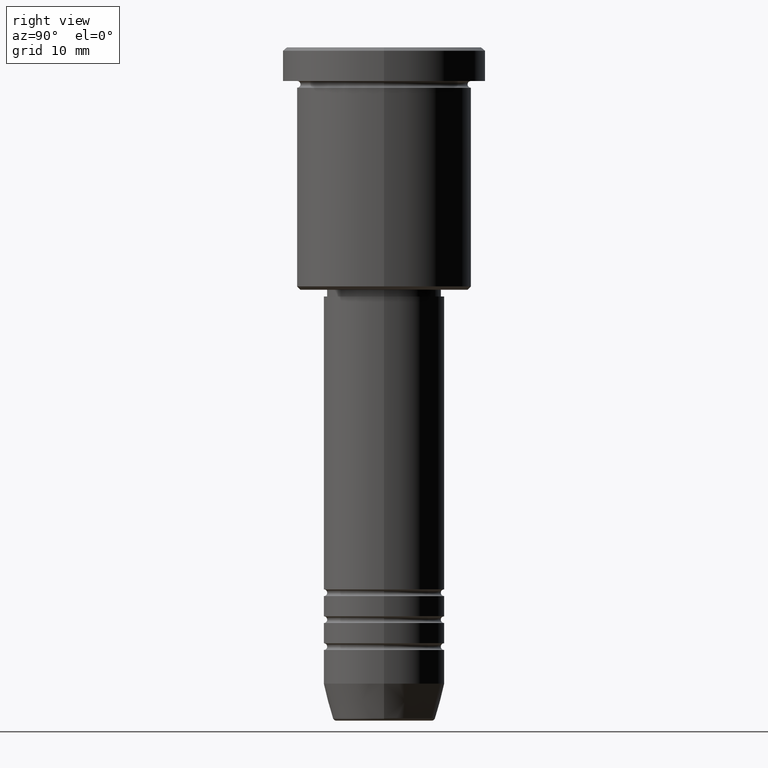
[diagram: clean part render]
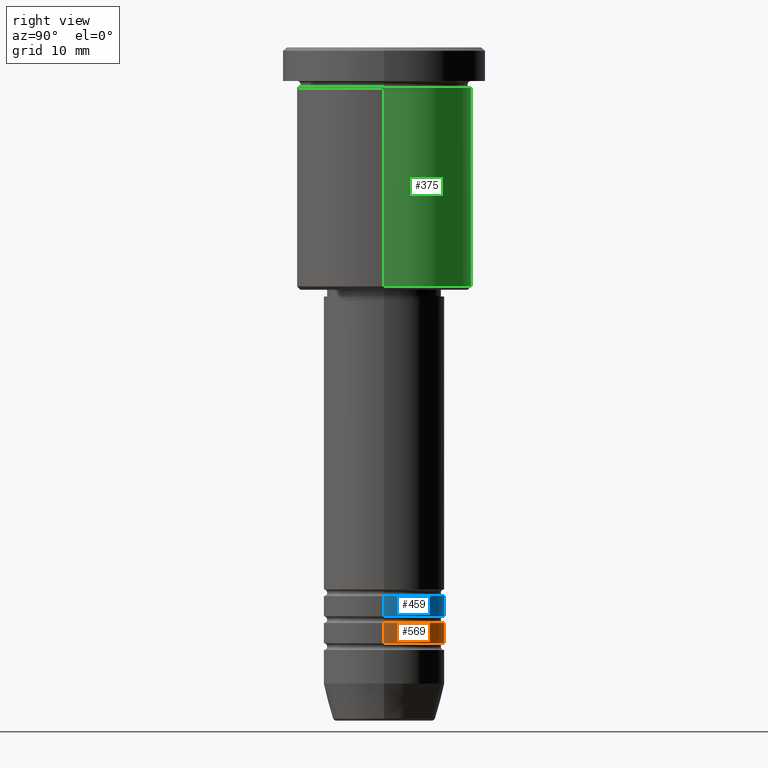
[diagram: same view with three faces highlighted in distinct colors, each labeled with its STEP entity id]
A machine part, right view with three faces highlighted in distinct colors.
Their STEP definitions:

[orange] entity #569 — the highlighted cylindrical surface (partial cylindrical patch) has radius 9 mm, axis along (-0, -0, 1).
#23 = DIRECTION ( 'NONE',  ( -0.000000000000000000, -0.000000000000000000, 1.000000000000000000 ) ) ;
#111 = LINE ( 'NONE', #144, #901 ) ;
#144 = CARTESIAN_POINT ( 'NONE',  ( 9.000000000000001776, 0.000000000000000000, 0.000000000000000000 ) ) ;
#168 = CARTESIAN_POINT ( 'NONE',  ( -9.000000000000000000, 1.102182119232617714E-15, -85.49999999999998579 ) ) ;
#213 = ORIENTED_EDGE ( 'NONE', *, *, #739, .T. ) ;
#224 = CARTESIAN_POINT ( 'NONE',  ( 0.000000000000000000, 0.000000000000000000, 0.000000000000000000 ) ) ;
#230 = CARTESIAN_POINT ( 'NONE',  ( 9.000000000000000000, 0.000000000000000000, -85.49999999999998579 ) ) ;
#286 = VERTEX_POINT ( 'NONE', #741 ) ;
#333 = DIRECTION ( 'NONE',  ( -0.000000000000000000, -0.000000000000000000, 1.000000000000000000 ) ) ;
#383 = CARTESIAN_POINT ( 'NONE',  ( 0.000000000000000000, 0.000000000000000000, -85.49999999999998579 ) ) ;
#465 = AXIS2_PLACEMENT_3D ( 'NONE', #1162, #333, #716 ) ;
#473 = DIRECTION ( 'NONE',  ( 1.000000000000000000, 0.000000000000000000, 0.000000000000000000 ) ) ;
#510 = CIRCLE ( 'NONE', #776, 9.000000000000000000 ) ;
#524 = EDGE_CURVE ( 'NONE', #1075, #761, #510, .T. ) ;
#569 = ADVANCED_FACE ( 'NONE', ( #693 ), #1048, .T. ) ;
#584 = EDGE_CURVE ( 'NONE', #286, #1075, #111, .T. ) ;
#671 = VERTEX_POINT ( 'NONE', #881 ) ;
#683 = ORIENTED_EDGE ( 'NONE', *, *, #1102, .T. ) ;
#693 = FACE_OUTER_BOUND ( 'NONE', #1015, .T. ) ;
#694 = LINE ( 'NONE', #954, #1173 ) ;
#716 = DIRECTION ( 'NONE',  ( 1.000000000000000000, 0.000000000000000000, 0.000000000000000000 ) ) ;
#739 = EDGE_CURVE ( 'NONE', #286, #671, #1022, .T. ) ;
#741 = CARTESIAN_POINT ( 'NONE',  ( 9.000000000000001776, 0.000000000000000000, -88.49999999999998579 ) ) ;
#761 = VERTEX_POINT ( 'NONE', #168 ) ;
#776 = AXIS2_PLACEMENT_3D ( 'NONE', #383, #1124, #473 ) ;
#881 = CARTESIAN_POINT ( 'NONE',  ( -9.000000000000001776, 1.102182119232617911E-15, -88.49999999999998579 ) ) ;
#883 = DIRECTION ( 'NONE',  ( -0.000000000000000000, -0.000000000000000000, 1.000000000000000000 ) ) ;
#901 = VECTOR ( 'NONE', #1145, 1000.000000000000000 ) ;
#921 = AXIS2_PLACEMENT_3D ( 'NONE', #224, #23, #1028 ) ;
#954 = CARTESIAN_POINT ( 'NONE',  ( -9.000000000000001776, 1.102182119232617911E-15, 0.000000000000000000 ) ) ;
#1015 = EDGE_LOOP ( 'NONE', ( #213, #683, #1139, #1114 ) ) ;
#1022 = CIRCLE ( 'NONE', #465, 9.000000000000001776 ) ;
#1028 = DIRECTION ( 'NONE',  ( 1.000000000000000000, 0.000000000000000000, 0.000000000000000000 ) ) ;
#1048 = CYLINDRICAL_SURFACE ( 'NONE', #921, 9.000000000000001776 ) ;
#1075 = VERTEX_POINT ( 'NONE', #230 ) ;
#1102 = EDGE_CURVE ( 'NONE', #671, #761, #694, .T. ) ;
#1114 = ORIENTED_EDGE ( 'NONE', *, *, #584, .F. ) ;
#1124 = DIRECTION ( 'NONE',  ( -0.000000000000000000, -0.000000000000000000, 1.000000000000000000 ) ) ;
#1139 = ORIENTED_EDGE ( 'NONE', *, *, #524, .F. ) ;
#1145 = DIRECTION ( 'NONE',  ( -0.000000000000000000, -0.000000000000000000, 1.000000000000000000 ) ) ;
#1162 = CARTESIAN_POINT ( 'NONE',  ( 0.000000000000000000, 0.000000000000000000, -88.49999999999998579 ) ) ;
#1173 = VECTOR ( 'NONE', #883, 1000.000000000000000 ) ;

[blue] entity #459 — the highlighted cylindrical surface (partial cylindrical patch) has radius 9 mm, axis along (-0, -0, 1).
#10 = VERTEX_POINT ( 'NONE', #657 ) ;
#32 = DIRECTION ( 'NONE',  ( 1.000000000000000000, 0.000000000000000000, 0.000000000000000000 ) ) ;
#40 = CARTESIAN_POINT ( 'NONE',  ( -9.000000000000000000, 1.102182119232617714E-15, -81.49999999999998579 ) ) ;
#88 = CIRCLE ( 'NONE', #150, 9.000000000000001776 ) ;
#126 = CARTESIAN_POINT ( 'NONE',  ( 0.000000000000000000, 0.000000000000000000, -84.49999999999998579 ) ) ;
#150 = AXIS2_PLACEMENT_3D ( 'NONE', #126, #489, #32 ) ;
#170 = DIRECTION ( 'NONE',  ( -0.000000000000000000, -0.000000000000000000, 1.000000000000000000 ) ) ;
#172 = ORIENTED_EDGE ( 'NONE', *, *, #711, .F. ) ;
#210 = AXIS2_PLACEMENT_3D ( 'NONE', #708, #703, #616 ) ;
#299 = CARTESIAN_POINT ( 'NONE',  ( 9.000000000000000000, 0.000000000000000000, -81.49999999999998579 ) ) ;
#308 = EDGE_CURVE ( 'NONE', #451, #484, #755, .T. ) ;
#310 = ORIENTED_EDGE ( 'NONE', *, *, #963, .F. ) ;
#389 = FACE_OUTER_BOUND ( 'NONE', #548, .T. ) ;
#451 = VERTEX_POINT ( 'NONE', #1109 ) ;
#459 = ADVANCED_FACE ( 'NONE', ( #389 ), #595, .T. ) ;
#482 = LINE ( 'NONE', #1021, #1096 ) ;
#484 = VERTEX_POINT ( 'NONE', #40 ) ;
#487 = EDGE_CURVE ( 'NONE', #10, #451, #88, .T. ) ;
#489 = DIRECTION ( 'NONE',  ( -0.000000000000000000, -0.000000000000000000, 1.000000000000000000 ) ) ;
#528 = ORIENTED_EDGE ( 'NONE', *, *, #308, .T. ) ;
#548 = EDGE_LOOP ( 'NONE', ( #805, #528, #172, #310 ) ) ;
#574 = DIRECTION ( 'NONE',  ( -0.000000000000000000, -0.000000000000000000, 1.000000000000000000 ) ) ;
#595 = CYLINDRICAL_SURFACE ( 'NONE', #639, 9.000000000000001776 ) ;
#616 = DIRECTION ( 'NONE',  ( 1.000000000000000000, 0.000000000000000000, 0.000000000000000000 ) ) ;
#639 = AXIS2_PLACEMENT_3D ( 'NONE', #1133, #872, #667 ) ;
#657 = CARTESIAN_POINT ( 'NONE',  ( 9.000000000000001776, 0.000000000000000000, -84.49999999999998579 ) ) ;
#667 = DIRECTION ( 'NONE',  ( 1.000000000000000000, 0.000000000000000000, 0.000000000000000000 ) ) ;
#703 = DIRECTION ( 'NONE',  ( -0.000000000000000000, -0.000000000000000000, 1.000000000000000000 ) ) ;
#708 = CARTESIAN_POINT ( 'NONE',  ( 0.000000000000000000, 0.000000000000000000, -81.49999999999998579 ) ) ;
#711 = EDGE_CURVE ( 'NONE', #1024, #484, #1128, .T. ) ;
#755 = LINE ( 'NONE', #1093, #1069 ) ;
#805 = ORIENTED_EDGE ( 'NONE', *, *, #487, .T. ) ;
#872 = DIRECTION ( 'NONE',  ( -0.000000000000000000, -0.000000000000000000, 1.000000000000000000 ) ) ;
#963 = EDGE_CURVE ( 'NONE', #10, #1024, #482, .T. ) ;
#1021 = CARTESIAN_POINT ( 'NONE',  ( 9.000000000000001776, 0.000000000000000000, 0.000000000000000000 ) ) ;
#1024 = VERTEX_POINT ( 'NONE', #299 ) ;
#1069 = VECTOR ( 'NONE', #170, 1000.000000000000000 ) ;
#1093 = CARTESIAN_POINT ( 'NONE',  ( -9.000000000000001776, 1.102182119232617911E-15, 0.000000000000000000 ) ) ;
#1096 = VECTOR ( 'NONE', #574, 1000.000000000000000 ) ;
#1109 = CARTESIAN_POINT ( 'NONE',  ( -9.000000000000001776, 1.102182119232617911E-15, -84.49999999999998579 ) ) ;
#1128 = CIRCLE ( 'NONE', #210, 9.000000000000000000 ) ;
#1133 = CARTESIAN_POINT ( 'NONE',  ( 0.000000000000000000, 0.000000000000000000, 0.000000000000000000 ) ) ;

[green] entity #375 — the highlighted cylindrical surface (partial cylindrical patch) has radius 13 mm, axis along (-0, -0, 1).
#1 = ORIENTED_EDGE ( 'NONE', *, *, #508, .T. ) ;
#6 = CARTESIAN_POINT ( 'NONE',  ( 0.000000000000000000, 0.000000000000000000, 0.000000000000000000 ) ) ;
#20 = VECTOR ( 'NONE', #772, 1000.000000000000000 ) ;
#29 = AXIS2_PLACEMENT_3D ( 'NONE', #945, #477, #568 ) ;
#31 = ORIENTED_EDGE ( 'NONE', *, *, #975, .F. ) ;
#115 = CARTESIAN_POINT ( 'NONE',  ( 13.00000000000000178, 0.000000000000000000, 0.000000000000000000 ) ) ;
#169 = VERTEX_POINT ( 'NONE', #248 ) ;
#184 = DIRECTION ( 'NONE',  ( 1.000000000000000000, 0.000000000000000000, 0.000000000000000000 ) ) ;
#206 = EDGE_CURVE ( 'NONE', #615, #790, #665, .T. ) ;
#234 = CARTESIAN_POINT ( 'NONE',  ( 13.00000000000000178, 0.000000000000000000, -35.49999999999999289 ) ) ;
#248 = CARTESIAN_POINT ( 'NONE',  ( -13.00000000000000178, 1.592040838891559293E-15, -35.49999999999999289 ) ) ;
#300 = AXIS2_PLACEMENT_3D ( 'NONE', #1055, #980, #885 ) ;
#375 = ADVANCED_FACE ( 'NONE', ( #825 ), #463, .T. ) ;
#393 = VERTEX_POINT ( 'NONE', #446 ) ;
#397 = EDGE_LOOP ( 'NONE', ( #513, #1, #31, #758 ) ) ;
#398 = LINE ( 'NONE', #570, #20 ) ;
#446 = CARTESIAN_POINT ( 'NONE',  ( -13.00000000000000178, 1.592040838891559293E-15, -5.999999999999999112 ) ) ;
#463 = CYLINDRICAL_SURFACE ( 'NONE', #659, 13.00000000000000178 ) ;
#477 = DIRECTION ( 'NONE',  ( -0.000000000000000000, -0.000000000000000000, 1.000000000000000000 ) ) ;
#508 = EDGE_CURVE ( 'NONE', #169, #393, #398, .T. ) ;
#512 = CIRCLE ( 'NONE', #300, 13.00000000000000178 ) ;
#513 = ORIENTED_EDGE ( 'NONE', *, *, #719, .T. ) ;
#543 = CIRCLE ( 'NONE', #29, 13.00000000000000178 ) ;
#568 = DIRECTION ( 'NONE',  ( 1.000000000000000000, 0.000000000000000000, 0.000000000000000000 ) ) ;
#570 = CARTESIAN_POINT ( 'NONE',  ( -13.00000000000000178, 1.592040838891559293E-15, 0.000000000000000000 ) ) ;
#615 = VERTEX_POINT ( 'NONE', #234 ) ;
#659 = AXIS2_PLACEMENT_3D ( 'NONE', #6, #1087, #184 ) ;
#665 = LINE ( 'NONE', #115, #704 ) ;
#677 = DIRECTION ( 'NONE',  ( -0.000000000000000000, -0.000000000000000000, 1.000000000000000000 ) ) ;
#704 = VECTOR ( 'NONE', #677, 1000.000000000000000 ) ;
#719 = EDGE_CURVE ( 'NONE', #615, #169, #512, .T. ) ;
#758 = ORIENTED_EDGE ( 'NONE', *, *, #206, .F. ) ;
#772 = DIRECTION ( 'NONE',  ( -0.000000000000000000, -0.000000000000000000, 1.000000000000000000 ) ) ;
#790 = VERTEX_POINT ( 'NONE', #917 ) ;
#825 = FACE_OUTER_BOUND ( 'NONE', #397, .T. ) ;
#885 = DIRECTION ( 'NONE',  ( -1.000000000000000000, 0.000000000000000000, 0.000000000000000000 ) ) ;
#917 = CARTESIAN_POINT ( 'NONE',  ( 13.00000000000000178, 0.000000000000000000, -5.999999999999999112 ) ) ;
#945 = CARTESIAN_POINT ( 'NONE',  ( 0.000000000000000000, 0.000000000000000000, -5.999999999999999112 ) ) ;
#975 = EDGE_CURVE ( 'NONE', #790, #393, #543, .T. ) ;
#980 = DIRECTION ( 'NONE',  ( -0.000000000000000000, -0.000000000000000000, 1.000000000000000000 ) ) ;
#1055 = CARTESIAN_POINT ( 'NONE',  ( 0.000000000000000000, 0.000000000000000000, -35.49999999999999289 ) ) ;
#1087 = DIRECTION ( 'NONE',  ( -0.000000000000000000, -0.000000000000000000, 1.000000000000000000 ) ) ;